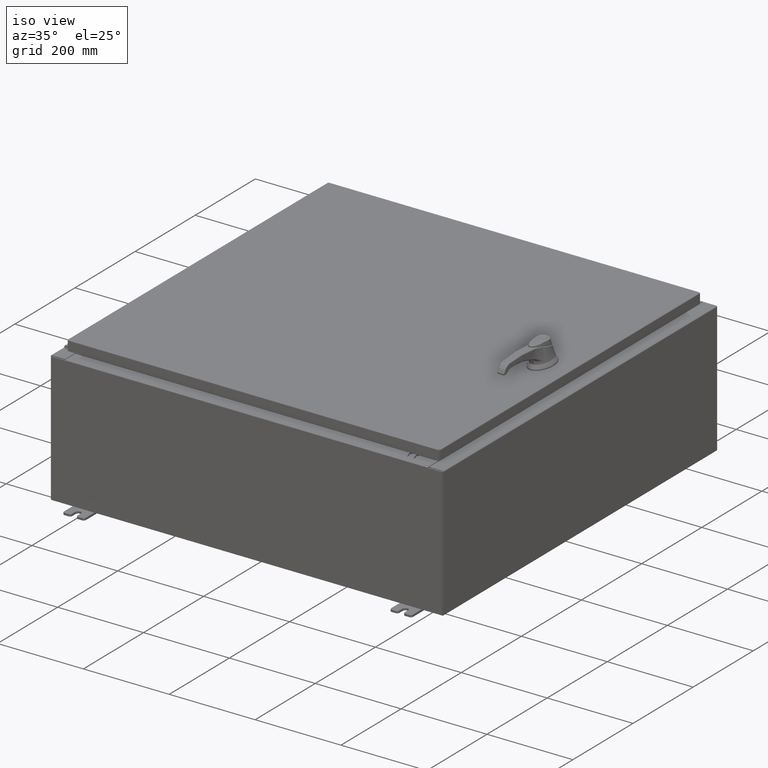
[diagram: clean part render]
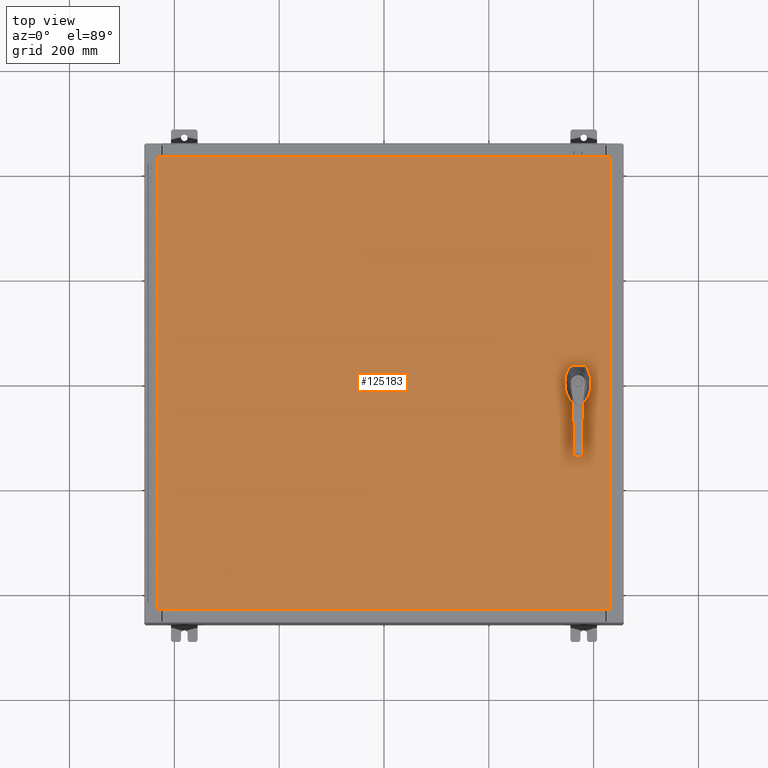
[diagram: tour spotlight — one face highlighted and labeled with its STEP entity id]
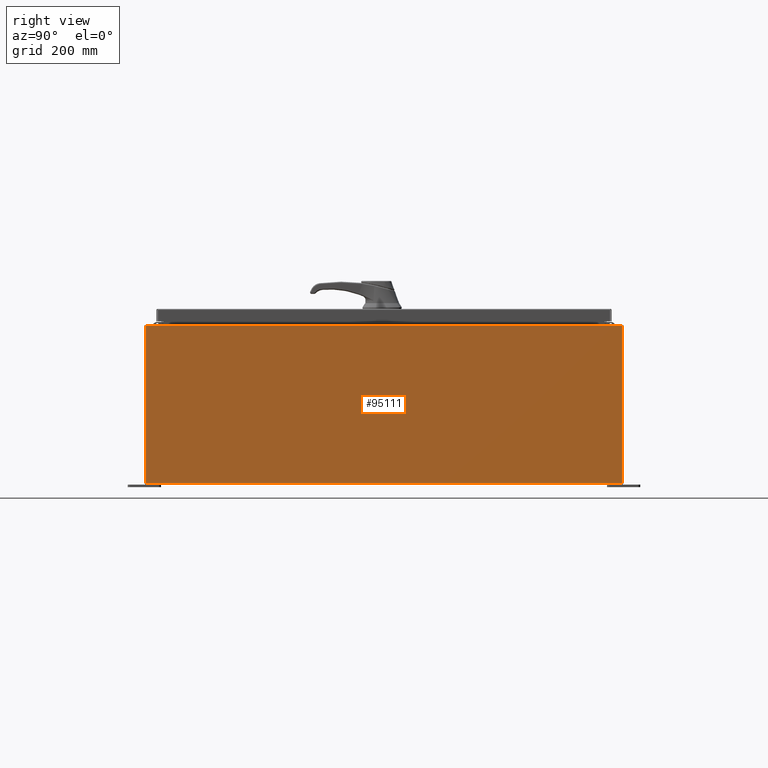
[diagram: tour spotlight — one face highlighted and labeled with its STEP entity id]
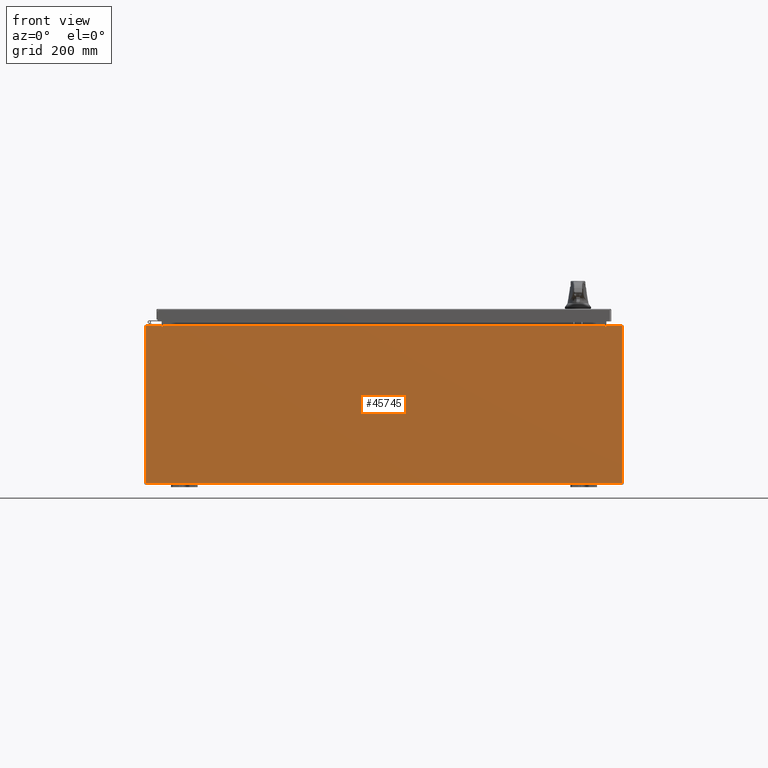
[diagram: tour spotlight — one face highlighted and labeled with its STEP entity id]
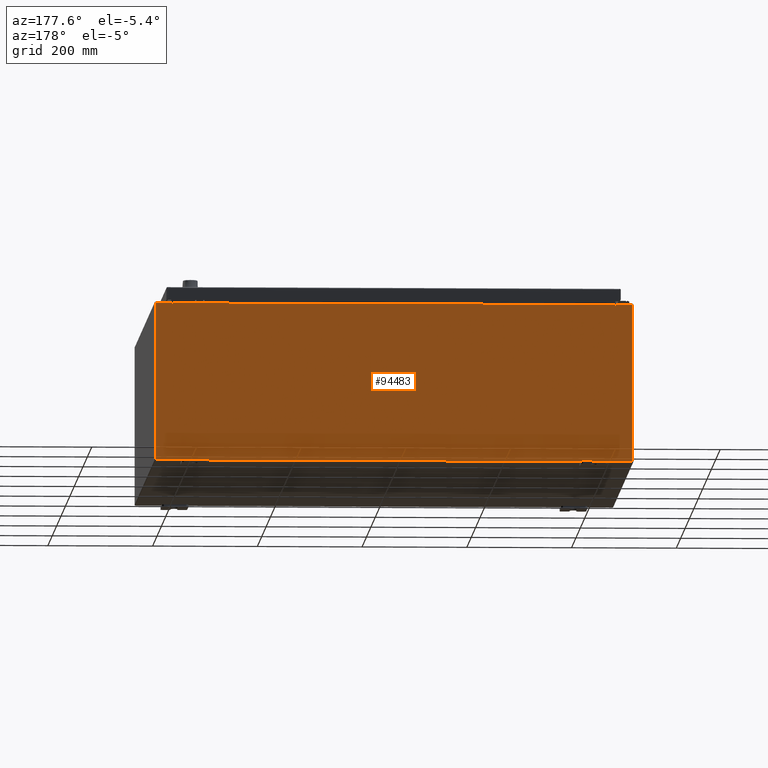
[diagram: tour spotlight — one face highlighted and labeled with its STEP entity id]
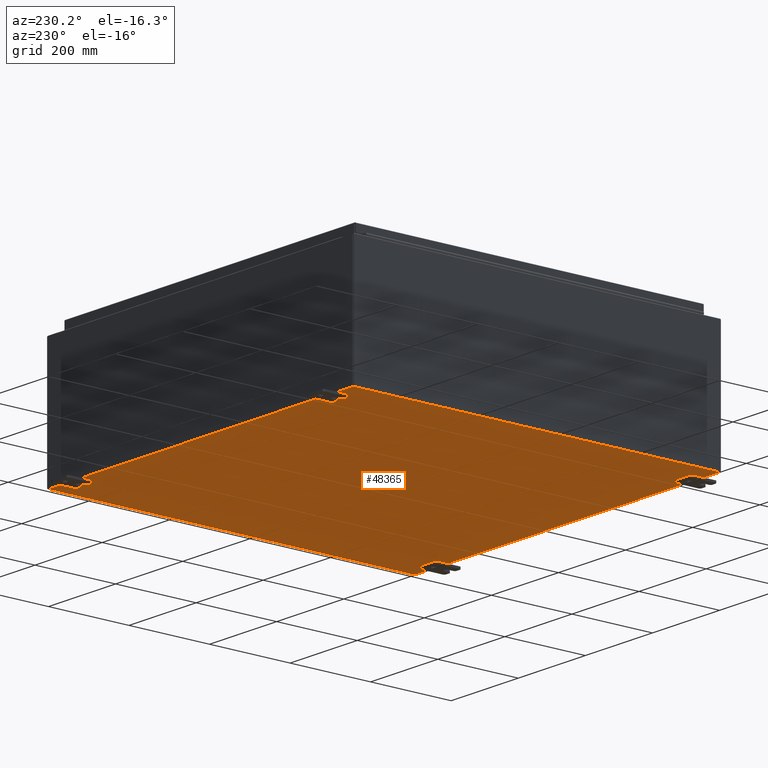
[diagram: tour spotlight — one face highlighted and labeled with its STEP entity id]
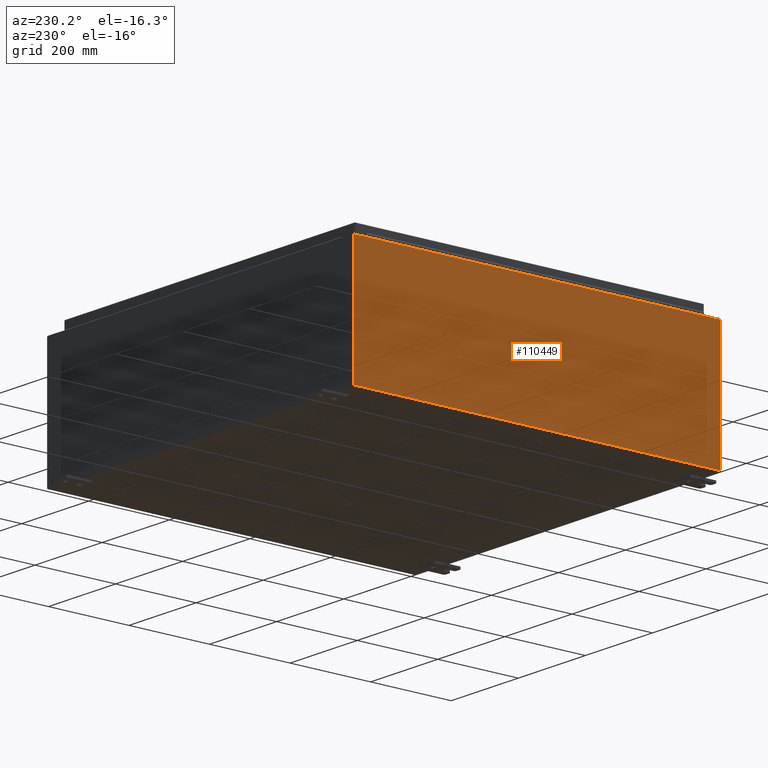
[diagram: tour spotlight — one face highlighted and labeled with its STEP entity id]
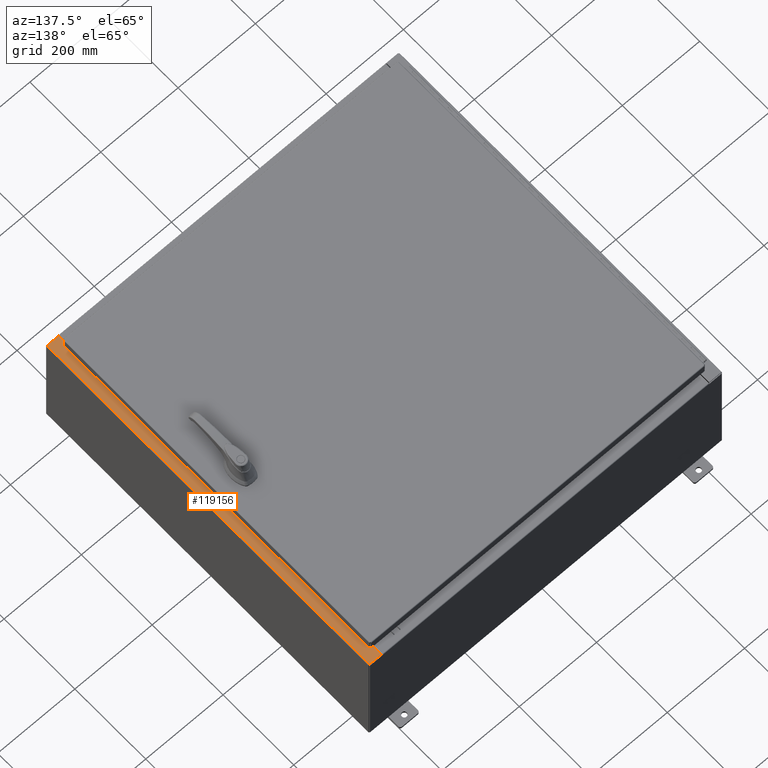
[diagram: tour spotlight — one face highlighted and labeled with its STEP entity id]
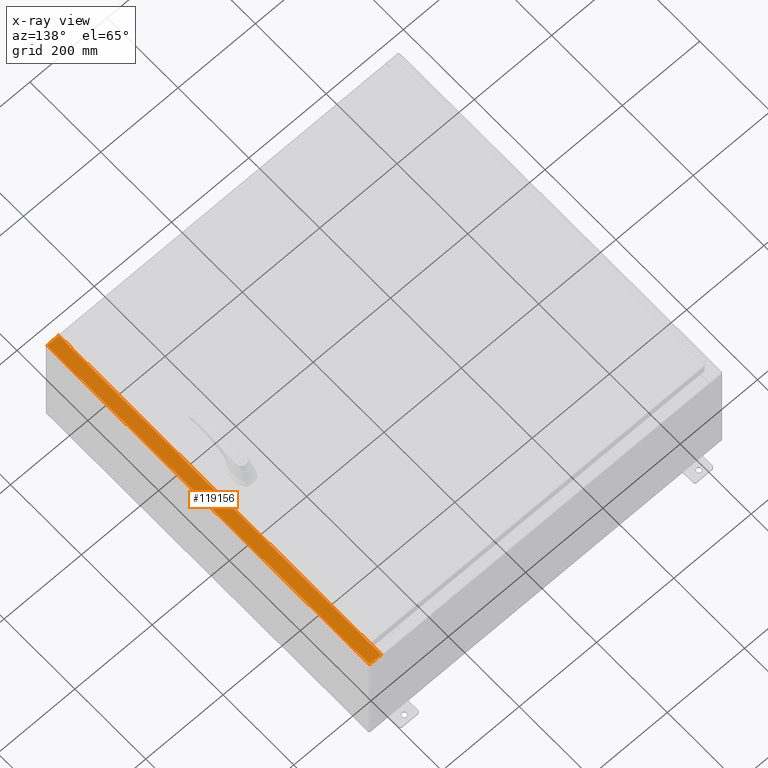
[diagram: x-ray of the same camera — body ghosted, this tour face saturated]
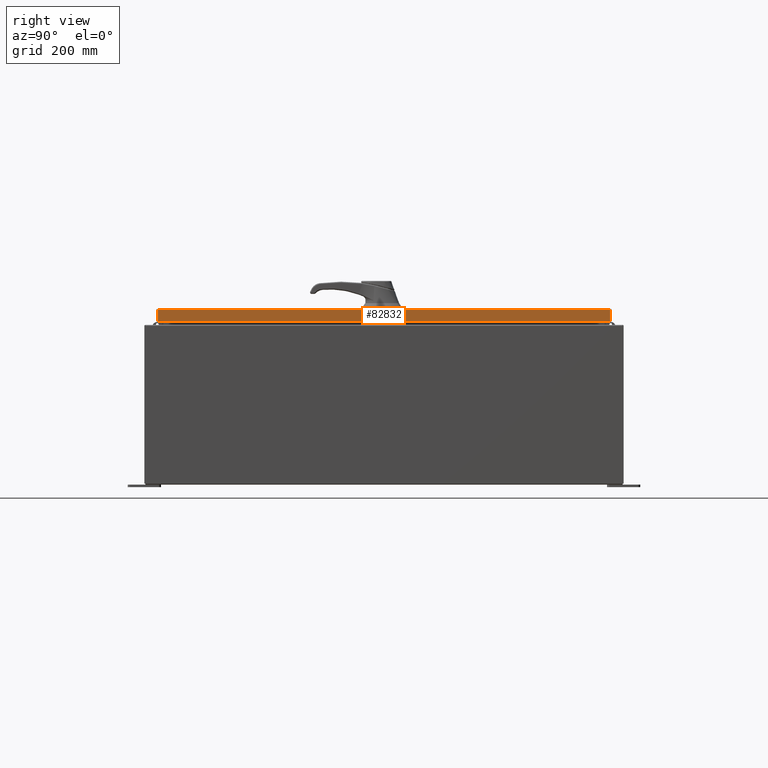
[diagram: tour spotlight — one face highlighted and labeled with its STEP entity id]
A machine part: a face-by-face anatomy tour. The part has 3022 B-rep faces; the first image is the clean iso view, then the 8 largest visible faces are spotlighted one at a time (largest first), each with its STEP entity span.

Face 1 — top view, entity #125183. In plain terms, the highlighted planar face has unit normal (0, 0, -1).
Definition (entity closure, byte-faithful):
#247 = AXIS2_PLACEMENT_3D ( 'NONE', #18612, #86260, #28329 ) ;
#1154 = CARTESIAN_POINT ( 'NONE',  ( -16.99029999999999800, -17.00630000000000000, -2.048885995248197400E-016 ) ) ;
#1490 = CIRCLE ( 'NONE', #102131, 0.4499999999999168000 ) ;
#2317 = CARTESIAN_POINT ( 'NONE',  ( 14.98099999999992700, 8.175868191945441800E-014, 0.0000000000000000000 ) ) ;
#3811 = DIRECTION ( 'NONE',  ( -0.0000000000000000000, 0.0000000000000000000, 1.000000000000000000 ) ) ;
#4805 = DIRECTION ( 'NONE',  ( -1.000000000000000000, 0.0000000000000000000, 0.0000000000000000000 ) ) ;
#5224 = CARTESIAN_POINT ( 'NONE',  ( 0.0000000000000000000, 0.4029999999999252000, 0.0000000000000000000 ) ) ;
#6013 = ORIENTED_EDGE ( 'NONE', *, *, #79825, .F. ) ;
#6403 = ORIENTED_EDGE ( 'NONE', *, *, #47116, .T. ) ;
#7168 = VECTOR ( 'NONE', #69169, 39.37007874015748100 ) ;
#8700 = ORIENTED_EDGE ( 'NONE', *, *, #18723, .F. ) ;
#9146 = CARTESIAN_POINT ( 'NONE',  ( 0.0000000000000000000, -0.4029999999999252000, 0.0000000000000000000 ) ) ;
#9535 = EDGE_CURVE ( 'NONE', #100340, #90543, #97739, .T. ) ;
#10936 = FACE_OUTER_BOUND ( 'NONE', #96216, .T. ) ;
#12810 = VERTEX_POINT ( 'NONE', #113449 ) ;
#15347 = EDGE_CURVE ( 'NONE', #25517, #33815, #97696, .T. ) ;
#16126 = ORIENTED_EDGE ( 'NONE', *, *, #19633, .F. ) ;
#18612 = CARTESIAN_POINT ( 'NONE',  ( 14.57799999999999900, 0.0000000000000000000, 0.0000000000000000000 ) ) ;
#18723 = EDGE_CURVE ( 'NONE', #104392, #21103, #53394, .T. ) ;
#18836 = DIRECTION ( 'NONE',  ( 1.000000000000000000, 0.0000000000000000000, 0.0000000000000000000 ) ) ;
#19083 = CARTESIAN_POINT ( 'NONE',  ( 16.99029999999999800, 17.00630000000000700, 8.878505979408856000E-016 ) ) ;
#19557 = PLANE ( 'NONE',  #72070 ) ;
#19633 = EDGE_CURVE ( 'NONE', #61672, #108957, #69861, .T. ) ;
#20175 = CARTESIAN_POINT ( 'NONE',  ( 14.57799999999999900, -1.338000000000000100, 0.0000000000000000000 ) ) ;
#21103 = VERTEX_POINT ( 'NONE', #112830 ) ;
#21870 = EDGE_CURVE ( 'NONE', #61672, #79755, #92408, .T. ) ;
#22813 = ORIENTED_EDGE ( 'NONE', *, *, #21870, .T. ) ;
#24285 = AXIS2_PLACEMENT_3D ( 'NONE', #33034, #100659, #42780 ) ;
#24867 = EDGE_CURVE ( 'NONE', #12810, #100340, #82413, .T. ) ;
#25517 = VERTEX_POINT ( 'NONE', #75489 ) ;
#28321 = DIRECTION ( 'NONE',  ( 0.0000000000000000000, 1.000000000000000000, 0.0000000000000000000 ) ) ;
#28329 = DIRECTION ( 'NONE',  ( 1.000000000000000000, 0.0000000000000000000, 0.0000000000000000000 ) ) ;
#29899 = DIRECTION ( 'NONE',  ( 1.000000000000000000, 0.0000000000000000000, 0.0000000000000000000 ) ) ;
#29961 = EDGE_CURVE ( 'NONE', #99778, #118231, #1490, .T. ) ;
#31470 = DIRECTION ( 'NONE',  ( 5.457491617345625800E-015, -1.000000000000000000, 0.0000000000000000000 ) ) ;
#31598 = AXIS2_PLACEMENT_3D ( 'NONE', #106842, #48927, #116537 ) ;
#33034 = CARTESIAN_POINT ( 'NONE',  ( 14.57799999999999900, 0.0000000000000000000, 0.0000000000000000000 ) ) ;
#33815 = VERTEX_POINT ( 'NONE', #78682 ) ;
#34227 = CARTESIAN_POINT ( 'NONE',  ( 14.37777262924369000, 0.4029999999999252000, 0.0000000000000000000 ) ) ;
#34671 = ORIENTED_EDGE ( 'NONE', *, *, #9535, .T. ) ;
#36681 = FACE_BOUND ( 'NONE', #67352, .T. ) ;
#37458 = CARTESIAN_POINT ( 'NONE',  ( 14.17500000000007400, 0.0000000000000000000, 0.0000000000000000000 ) ) ;
#37860 = CARTESIAN_POINT ( 'NONE',  ( 14.98099999999992900, -0.2002273707563079800, 0.0000000000000000000 ) ) ;
#39042 = CARTESIAN_POINT ( 'NONE',  ( 0.0000000000000000000, 0.0000000000000000000, 0.0000000000000000000 ) ) ;
#40576 = ORIENTED_EDGE ( 'NONE', *, *, #81793, .F. ) ;
#42014 = VECTOR ( 'NONE', #115924, 39.37007874015748100 ) ;
#42780 = DIRECTION ( 'NONE',  ( 1.000000000000000000, 0.0000000000000000000, 0.0000000000000000000 ) ) ;
#44087 = VECTOR ( 'NONE', #28321, 39.37007874015748100 ) ;
#46392 = ORIENTED_EDGE ( 'NONE', *, *, #82456, .F. ) ;
#47116 = EDGE_CURVE ( 'NONE', #89214, #12810, #93412, .T. ) ;
#47820 = CARTESIAN_POINT ( 'NONE',  ( 16.99029999999999800, -17.00629999999999600, -2.048885995248197400E-016 ) ) ;
#48760 = DIRECTION ( 'NONE',  ( 0.0000000000000000000, 0.0000000000000000000, -1.000000000000000000 ) ) ;
#48927 = DIRECTION ( 'NONE',  ( -0.0000000000000000000, 0.0000000000000000000, 1.000000000000000000 ) ) ;
#50136 = LINE ( 'NONE', #47820, #44087 ) ;
#50973 = CIRCLE ( 'NONE', #31598, 0.1715000000000011500 ) ;
#53394 = CIRCLE ( 'NONE', #82872, 0.1715000000000011500 ) ;
#53675 = CARTESIAN_POINT ( 'NONE',  ( 14.74950000000000100, -1.338000000000000100, 0.0000000000000000000 ) ) ;
#54263 = CARTESIAN_POINT ( 'NONE',  ( 14.57799999999999900, 0.0000000000000000000, 0.0000000000000000000 ) ) ;
#54295 = VECTOR ( 'NONE', #18836, 39.37007874015748100 ) ;
#55689 = ORIENTED_EDGE ( 'NONE', *, *, #112339, .F. ) ;
#55799 = DIRECTION ( 'NONE',  ( 0.0000000000000000000, -1.000000000000000000, 0.0000000000000000000 ) ) ;
#57225 = CARTESIAN_POINT ( 'NONE',  ( 14.77822737075630900, -0.4029999999999252000, 0.0000000000000000000 ) ) ;
#57317 = EDGE_LOOP ( 'NONE', ( #22813, #55689, #75155, #107827, #6013, #102780, #46392, #16126 ) ) ;
#58569 = LINE ( 'NONE', #37458, #7168 ) ;
#59267 = CARTESIAN_POINT ( 'NONE',  ( 14.17500000000007400, 0.2002273707563079800, 0.0000000000000000000 ) ) ;
#61672 = VERTEX_POINT ( 'NONE', #94278 ) ;
#61749 = CARTESIAN_POINT ( 'NONE',  ( 14.57799999999999900, 0.0000000000000000000, 0.0000000000000000000 ) ) ;
#62514 = EDGE_CURVE ( 'NONE', #33815, #76995, #83022, .T. ) ;
#63961 = DIRECTION ( 'NONE',  ( 1.000000000000000000, 0.0000000000000000000, 0.0000000000000000000 ) ) ;
#64669 = LINE ( 'NONE', #5224, #113077 ) ;
#66697 = VECTOR ( 'NONE', #31470, 39.37007874015748100 ) ;
#66946 = CARTESIAN_POINT ( 'NONE',  ( -16.99029999999999800, -17.00630000000000000, -2.048885995248197400E-016 ) ) ;
#67352 = EDGE_LOOP ( 'NONE', ( #8700, #40576 ) ) ;
#68810 = DIRECTION ( 'NONE',  ( 1.000000000000000000, -0.0000000000000000000, -0.0000000000000000000 ) ) ;
#69169 = DIRECTION ( 'NONE',  ( 0.0000000000000000000, -1.000000000000000000, 0.0000000000000000000 ) ) ;
#69861 = CIRCLE ( 'NONE', #247, 0.4499999999999168000 ) ;
#70563 = CARTESIAN_POINT ( 'NONE',  ( 16.99029999999999800, 17.00630000000000700, 8.878505979408856000E-016 ) ) ;
#71491 = DIRECTION ( 'NONE',  ( 1.000000000000000000, 0.0000000000000000000, 0.0000000000000000000 ) ) ;
#72070 = AXIS2_PLACEMENT_3D ( 'NONE', #39042, #48760, #116383 ) ;
#75155 = ORIENTED_EDGE ( 'NONE', *, *, #62514, .F. ) ;
#75489 = CARTESIAN_POINT ( 'NONE',  ( 14.17500000000007400, -0.2002273707563079800, 0.0000000000000000000 ) ) ;
#76074 = AXIS2_PLACEMENT_3D ( 'NONE', #54263, #121855, #63961 ) ;
#76995 = VERTEX_POINT ( 'NONE', #57225 ) ;
#78682 = CARTESIAN_POINT ( 'NONE',  ( 14.37777262924369000, -0.4029999999999252000, 0.0000000000000000000 ) ) ;
#79362 = VECTOR ( 'NONE', #55799, 39.37007874015748100 ) ;
#79755 = VERTEX_POINT ( 'NONE', #37860 ) ;
#79825 = EDGE_CURVE ( 'NONE', #118231, #25517, #58569, .T. ) ;
#81793 = EDGE_CURVE ( 'NONE', #21103, #104392, #50973, .T. ) ;
#82413 = LINE ( 'NONE', #123424, #79362 ) ;
#82456 = EDGE_CURVE ( 'NONE', #108957, #99778, #64669, .T. ) ;
#82872 = AXIS2_PLACEMENT_3D ( 'NONE', #20175, #87801, #29899 ) ;
#83022 = LINE ( 'NONE', #9146, #54295 ) ;
#85040 = FACE_BOUND ( 'NONE', #57317, .T. ) ;
#86260 = DIRECTION ( 'NONE',  ( -0.0000000000000000000, 0.0000000000000000000, 1.000000000000000000 ) ) ;
#87801 = DIRECTION ( 'NONE',  ( -0.0000000000000000000, 0.0000000000000000000, 1.000000000000000000 ) ) ;
#89214 = VERTEX_POINT ( 'NONE', #70563 ) ;
#90543 = VERTEX_POINT ( 'NONE', #103818 ) ;
#92408 = LINE ( 'NONE', #2317, #66697 ) ;
#93262 = ORIENTED_EDGE ( 'NONE', *, *, #116387, .T. ) ;
#93412 = LINE ( 'NONE', #19083, #42014 ) ;
#94278 = CARTESIAN_POINT ( 'NONE',  ( 14.98099999999992700, 0.2002273707563075900, 0.0000000000000000000 ) ) ;
#96216 = EDGE_LOOP ( 'NONE', ( #34671, #93262, #6403, #114845 ) ) ;
#97696 = CIRCLE ( 'NONE', #24285, 0.4499999999999168000 ) ;
#97739 = LINE ( 'NONE', #1154, #120440 ) ;
#99778 = VERTEX_POINT ( 'NONE', #34227 ) ;
#100340 = VERTEX_POINT ( 'NONE', #66946 ) ;
#100659 = DIRECTION ( 'NONE',  ( -0.0000000000000000000, 0.0000000000000000000, 1.000000000000000000 ) ) ;
#102131 = AXIS2_PLACEMENT_3D ( 'NONE', #61749, #3811, #71491 ) ;
#102780 = ORIENTED_EDGE ( 'NONE', *, *, #29961, .F. ) ;
#103818 = CARTESIAN_POINT ( 'NONE',  ( 16.99029999999999800, -17.00629999999999600, -2.048885995248197400E-016 ) ) ;
#104392 = VERTEX_POINT ( 'NONE', #53675 ) ;
#104924 = CIRCLE ( 'NONE', #76074, 0.4499999999999168000 ) ;
#106842 = CARTESIAN_POINT ( 'NONE',  ( 14.57799999999999900, -1.338000000000000100, 0.0000000000000000000 ) ) ;
#107827 = ORIENTED_EDGE ( 'NONE', *, *, #15347, .F. ) ;
#108957 = VERTEX_POINT ( 'NONE', #125056 ) ;
#112339 = EDGE_CURVE ( 'NONE', #76995, #79755, #104924, .T. ) ;
#112830 = CARTESIAN_POINT ( 'NONE',  ( 14.40649999999999800, -1.338000000000000100, 0.0000000000000000000 ) ) ;
#113077 = VECTOR ( 'NONE', #4805, 39.37007874015748100 ) ;
#113449 = CARTESIAN_POINT ( 'NONE',  ( -16.99029999999998400, 17.00630000000000300, -2.048885995248197400E-016 ) ) ;
#114845 = ORIENTED_EDGE ( 'NONE', *, *, #24867, .T. ) ;
#115924 = DIRECTION ( 'NONE',  ( -1.000000000000000000, -0.0000000000000000000, -0.0000000000000000000 ) ) ;
#116383 = DIRECTION ( 'NONE',  ( -1.000000000000000000, 0.0000000000000000000, -0.0000000000000000000 ) ) ;
#116387 = EDGE_CURVE ( 'NONE', #90543, #89214, #50136, .T. ) ;
#116537 = DIRECTION ( 'NONE',  ( 1.000000000000000000, 0.0000000000000000000, 0.0000000000000000000 ) ) ;
#118231 = VERTEX_POINT ( 'NONE', #59267 ) ;
#120440 = VECTOR ( 'NONE', #68810, 39.37007874015748100 ) ;
#121855 = DIRECTION ( 'NONE',  ( -0.0000000000000000000, 0.0000000000000000000, 1.000000000000000000 ) ) ;
#123424 = CARTESIAN_POINT ( 'NONE',  ( -16.99029999999998400, 17.00630000000000300, -2.048885995248197400E-016 ) ) ;
#125056 = CARTESIAN_POINT ( 'NONE',  ( 14.77822737075630900, 0.4029999999999252000, 0.0000000000000000000 ) ) ;
#125183 = ADVANCED_FACE ( 'NONE', ( #36681, #10936, #85040 ), #19557, .F. ) ;

Face 2 — right view, entity #95111. In plain terms, the highlighted planar face has unit normal (-1, 0, 0).
Definition (entity closure, byte-faithful):
#608 = EDGE_CURVE ( 'NONE', #79963, #64105, #79449, .T. ) ;
#8300 = VECTOR ( 'NONE', #34456, 39.37007874015748100 ) ;
#9409 = VERTEX_POINT ( 'NONE', #105599 ) ;
#9739 = LINE ( 'NONE', #80046, #41555 ) ;
#13029 = EDGE_LOOP ( 'NONE', ( #102303, #97723, #32792, #23794 ) ) ;
#13129 = CARTESIAN_POINT ( 'NONE',  ( 18.00000000000000000, 0.0000000000000000000, -6.293710784286997500E-014 ) ) ;
#15602 = CARTESIAN_POINT ( 'NONE',  ( 18.00000000000000000, 17.92530000000000000, -5.965204533939718800E-014 ) ) ;
#17882 = VECTOR ( 'NONE', #73524, 39.37007874015748100 ) ;
#22092 = DIRECTION ( 'NONE',  ( 2.122662239958547800E-031, -1.000000000000000000, 6.096072018129156600E-017 ) ) ;
#23794 = ORIENTED_EDGE ( 'NONE', *, *, #99812, .T. ) ;
#32123 = DIRECTION ( 'NONE',  ( -1.000000000000000000, 0.0000000000000000000, 3.482016343714355100E-015 ) ) ;
#32792 = ORIENTED_EDGE ( 'NONE', *, *, #50721, .F. ) ;
#34456 = DIRECTION ( 'NONE',  ( -0.0000000000000000000, -1.000000000000000000, -0.0000000000000000000 ) ) ;
#34625 = CARTESIAN_POINT ( 'NONE',  ( 18.00000000000004300, -17.92530000000000000, 11.83760000000000200 ) ) ;
#41555 = VECTOR ( 'NONE', #22092, 39.37007874015748100 ) ;
#47132 = FACE_OUTER_BOUND ( 'NONE', #13029, .T. ) ;
#50721 = EDGE_CURVE ( 'NONE', #9409, #64105, #9739, .T. ) ;
#53765 = VECTOR ( 'NONE', #60504, 39.37007874015748100 ) ;
#56691 = LINE ( 'NONE', #92302, #8300 ) ;
#59701 = VERTEX_POINT ( 'NONE', #87066 ) ;
#60504 = DIRECTION ( 'NONE',  ( -3.482016343714355500E-015, 0.0000000000000000000, -1.000000000000000000 ) ) ;
#64105 = VERTEX_POINT ( 'NONE', #92120 ) ;
#68143 = EDGE_CURVE ( 'NONE', #59701, #79963, #56691, .T. ) ;
#73524 = DIRECTION ( 'NONE',  ( 3.482016343714355500E-015, -1.832640180902292400E-016, 1.000000000000000000 ) ) ;
#79449 = LINE ( 'NONE', #88383, #53765 ) ;
#79963 = VERTEX_POINT ( 'NONE', #34625 ) ;
#80046 = CARTESIAN_POINT ( 'NONE',  ( 18.00000000000000000, -17.92530000000000000, 0.01299999999999984700 ) ) ;
#87066 = CARTESIAN_POINT ( 'NONE',  ( 18.00000000000004300, 17.92530000000000000, 11.83760000000000200 ) ) ;
#88383 = CARTESIAN_POINT ( 'NONE',  ( 18.00000000000000000, -17.92530000000000000, -6.293710784286997500E-014 ) ) ;
#90441 = PLANE ( 'NONE',  #92352 ) ;
#92120 = CARTESIAN_POINT ( 'NONE',  ( 18.00000000000000000, -17.92530000000000000, 0.01300000000000022700 ) ) ;
#92302 = CARTESIAN_POINT ( 'NONE',  ( 18.00000000000004300, 17.92530000000000000, 11.83760000000000200 ) ) ;
#92352 = AXIS2_PLACEMENT_3D ( 'NONE', #13129, #32123, #100173 ) ;
#95111 = ADVANCED_FACE ( 'NONE', ( #47132 ), #90441, .F. ) ;
#97723 = ORIENTED_EDGE ( 'NONE', *, *, #608, .T. ) ;
#99812 = EDGE_CURVE ( 'NONE', #9409, #59701, #117738, .T. ) ;
#100173 = DIRECTION ( 'NONE',  ( 3.482016343714355100E-015, 0.0000000000000000000, 1.000000000000000000 ) ) ;
#102303 = ORIENTED_EDGE ( 'NONE', *, *, #68143, .T. ) ;
#105599 = CARTESIAN_POINT ( 'NONE',  ( 18.00000000000000000, 17.92530000000000000, 0.01299999999999766100 ) ) ;
#117738 = LINE ( 'NONE', #15602, #17882 ) ;

Face 3 — front view, entity #45745. In plain terms, the highlighted planar face has unit normal (-0, 1, -0).
Definition (entity closure, byte-faithful):
#1341 = DIRECTION ( 'NONE',  ( -8.681145560799821800E-014, 0.0000000000000000000, -1.000000000000000000 ) ) ;
#3078 = CARTESIAN_POINT ( 'NONE',  ( -16.63720000000000000, 3.756290991288361700E-016, 5.912299999999999200 ) ) ;
#4880 = EDGE_CURVE ( 'NONE', #77182, #24878, #121171, .T. ) ;
#5556 = DIRECTION ( 'NONE',  ( 0.0000000000000000000, 0.0000000000000000000, -1.000000000000000000 ) ) ;
#6413 = CARTESIAN_POINT ( 'NONE',  ( -16.67455000000000000, 0.0000000000000000000, 5.925299999999999100 ) ) ;
#9327 = CARTESIAN_POINT ( 'NONE',  ( 16.67455000000000400, 0.0000000000000000000, 5.874949999999999200 ) ) ;
#9538 = DIRECTION ( 'NONE',  ( 0.0000000000000000000, -0.0000000000000000000, -1.000000000000000000 ) ) ;
#9831 = ORIENTED_EDGE ( 'NONE', *, *, #64724, .F. ) ;
#13480 = ORIENTED_EDGE ( 'NONE', *, *, #58668, .F. ) ;
#13783 = ORIENTED_EDGE ( 'NONE', *, *, #56678, .T. ) ;
#14004 = LINE ( 'NONE', #103746, #36676 ) ;
#14357 = VERTEX_POINT ( 'NONE', #51246 ) ;
#14592 = CARTESIAN_POINT ( 'NONE',  ( -16.65587499999999800, 0.0000000000000000000, 5.874949999999999200 ) ) ;
#18071 = VECTOR ( 'NONE', #82864, 39.37007874015748100 ) ;
#18781 = LINE ( 'NONE', #86994, #67210 ) ;
#19436 = VECTOR ( 'NONE', #83901, 39.37007874015748100 ) ;
#19927 = ORIENTED_EDGE ( 'NONE', *, *, #4880, .F. ) ;
#21789 = DIRECTION ( 'NONE',  ( -1.000000000000000000, -0.0000000000000000000, -0.0000000000000000000 ) ) ;
#23960 = EDGE_CURVE ( 'NONE', #24878, #80195, #91570, .T. ) ;
#24243 = DIRECTION ( 'NONE',  ( 0.0000000000000000000, 0.0000000000000000000, -1.000000000000000000 ) ) ;
#24856 = CARTESIAN_POINT ( 'NONE',  ( 16.63720000000000400, 0.0000000000000000000, 0.0000000000000000000 ) ) ;
#24878 = VERTEX_POINT ( 'NONE', #75221 ) ;
#25028 = EDGE_CURVE ( 'NONE', #45680, #88840, #18781, .T. ) ;
#26368 = CARTESIAN_POINT ( 'NONE',  ( -16.63720000000000000, 3.756290991288361700E-016, 5.912299999999999200 ) ) ;
#27935 = VECTOR ( 'NONE', #74446, 39.37007874015748100 ) ;
#28528 = DIRECTION ( 'NONE',  ( 0.0000000000000000000, -1.000000000000000000, 0.0000000000000000000 ) ) ;
#30143 = EDGE_CURVE ( 'NONE', #14357, #70246, #117928, .T. ) ;
#30613 = CARTESIAN_POINT ( 'NONE',  ( -17.92529999999999600, 0.0000000000000000000, 5.925299999999999100 ) ) ;
#31003 = LINE ( 'NONE', #64716, #27935 ) ;
#32713 = VERTEX_POINT ( 'NONE', #42367 ) ;
#34994 = FACE_OUTER_BOUND ( 'NONE', #63926, .T. ) ;
#36676 = VECTOR ( 'NONE', #93976, 39.37007874015748100 ) ;
#37252 = DIRECTION ( 'NONE',  ( 0.0000000000000000000, 0.0000000000000000000, -1.000000000000000000 ) ) ;
#38870 = VECTOR ( 'NONE', #1341, 39.37007874015748100 ) ;
#39917 = LINE ( 'NONE', #30613, #56512 ) ;
#41538 = EDGE_CURVE ( 'NONE', #79750, #87838, #39917, .T. ) ;
#42367 = CARTESIAN_POINT ( 'NONE',  ( 17.92530000000000400, 0.0000000000000000000, -5.925300000000000000 ) ) ;
#43839 = ORIENTED_EDGE ( 'NONE', *, *, #25028, .T. ) ;
#45680 = VERTEX_POINT ( 'NONE', #66206 ) ;
#45745 = ADVANCED_FACE ( 'NONE', ( #34994 ), #67438, .F. ) ;
#47585 = CARTESIAN_POINT ( 'NONE',  ( 16.67455000000000700, 0.0000000000000000000, 5.925300000000000000 ) ) ;
#48585 = CIRCLE ( 'NONE', #102689, 0.01867499999999949400 ) ;
#49554 = CARTESIAN_POINT ( 'NONE',  ( 16.67454999999949500, -0.0000000000000000000, -1.447541957108302900E-012 ) ) ;
#51246 = CARTESIAN_POINT ( 'NONE',  ( 16.63720000000000400, 0.0000000000000000000, 5.874949999999999200 ) ) ;
#52525 = ORIENTED_EDGE ( 'NONE', *, *, #30143, .F. ) ;
#54111 = EDGE_CURVE ( 'NONE', #59639, #14357, #48585, .T. ) ;
#56257 = CARTESIAN_POINT ( 'NONE',  ( -16.63720000000000000, -0.0000000000000000000, 0.0000000000000000000 ) ) ;
#56512 = VECTOR ( 'NONE', #79245, 39.37007874015748100 ) ;
#56678 = EDGE_CURVE ( 'NONE', #77182, #70246, #102690, .T. ) ;
#58628 = CARTESIAN_POINT ( 'NONE',  ( -17.92529999999999600, 0.0000000000000000000, 5.925299999999999100 ) ) ;
#58668 = EDGE_CURVE ( 'NONE', #80195, #88840, #14004, .T. ) ;
#59639 = VERTEX_POINT ( 'NONE', #9327 ) ;
#60584 = EDGE_CURVE ( 'NONE', #124009, #45680, #98354, .T. ) ;
#63306 = ORIENTED_EDGE ( 'NONE', *, *, #71427, .T. ) ;
#63478 = DIRECTION ( 'NONE',  ( -0.0000000000000000000, 1.000000000000000000, -0.0000000000000000000 ) ) ;
#63926 = EDGE_LOOP ( 'NONE', ( #13480, #105567, #19927, #13783, #52525, #101228, #9831, #96336, #63306, #110653, #123671, #43839 ) ) ;
#64716 = CARTESIAN_POINT ( 'NONE',  ( 17.92530000000000400, 0.0000000000000000000, 5.925300000000000000 ) ) ;
#64724 = EDGE_CURVE ( 'NONE', #79750, #59639, #90269, .T. ) ;
#66206 = CARTESIAN_POINT ( 'NONE',  ( -17.92529999999999600, 0.0000000000000000000, 5.925299999999999100 ) ) ;
#67210 = VECTOR ( 'NONE', #96705, 39.37007874015748100 ) ;
#67438 = PLANE ( 'NONE',  #110272 ) ;
#69654 = VECTOR ( 'NONE', #106848, 39.37007874015748100 ) ;
#69752 = VECTOR ( 'NONE', #37252, 39.37007874015748100 ) ;
#70031 = CARTESIAN_POINT ( 'NONE',  ( -17.92529999999999600, 0.0000000000000000000, -5.925300000000000000 ) ) ;
#70246 = VERTEX_POINT ( 'NONE', #85529 ) ;
#71427 = EDGE_CURVE ( 'NONE', #87838, #32713, #31003, .T. ) ;
#74446 = DIRECTION ( 'NONE',  ( 0.0000000000000000000, 0.0000000000000000000, -1.000000000000000000 ) ) ;
#75221 = CARTESIAN_POINT ( 'NONE',  ( -16.63720000000000000, -0.0000000000000000000, 5.874949999999999200 ) ) ;
#77182 = VERTEX_POINT ( 'NONE', #3078 ) ;
#79245 = DIRECTION ( 'NONE',  ( 1.000000000000000000, 0.0000000000000000000, 3.048036009064577000E-017 ) ) ;
#79750 = VERTEX_POINT ( 'NONE', #47585 ) ;
#80195 = VERTEX_POINT ( 'NONE', #89245 ) ;
#82238 = DIRECTION ( 'NONE',  ( -0.0000000000000000000, 1.000000000000000000, -0.0000000000000000000 ) ) ;
#82864 = DIRECTION ( 'NONE',  ( 0.0000000000000000000, 0.0000000000000000000, 1.000000000000000000 ) ) ;
#83901 = DIRECTION ( 'NONE',  ( 1.000000000000000000, 0.0000000000000000000, 0.0000000000000000000 ) ) ;
#85529 = CARTESIAN_POINT ( 'NONE',  ( 16.63720000000000400, 0.0000000000000000000, 5.912299999999999200 ) ) ;
#86994 = CARTESIAN_POINT ( 'NONE',  ( -17.92529999999999600, 0.0000000000000000000, 5.925299999999999100 ) ) ;
#87838 = VERTEX_POINT ( 'NONE', #93151 ) ;
#88840 = VERTEX_POINT ( 'NONE', #6413 ) ;
#89245 = CARTESIAN_POINT ( 'NONE',  ( -16.67455000000000000, 0.0000000000000000000, 5.874949999999999200 ) ) ;
#90269 = LINE ( 'NONE', #49554, #38870 ) ;
#91294 = LINE ( 'NONE', #70031, #117035 ) ;
#91570 = CIRCLE ( 'NONE', #101729, 0.01867499999999949400 ) ;
#93151 = CARTESIAN_POINT ( 'NONE',  ( 17.92530000000000400, 0.0000000000000000000, 5.925300000000000000 ) ) ;
#93976 = DIRECTION ( 'NONE',  ( 0.0000000000000000000, 0.0000000000000000000, 1.000000000000000000 ) ) ;
#96336 = ORIENTED_EDGE ( 'NONE', *, *, #41538, .T. ) ;
#96705 = DIRECTION ( 'NONE',  ( 1.000000000000000000, 0.0000000000000000000, 3.048036009064577000E-017 ) ) ;
#98354 = LINE ( 'NONE', #58628, #69654 ) ;
#101228 = ORIENTED_EDGE ( 'NONE', *, *, #54111, .F. ) ;
#101729 = AXIS2_PLACEMENT_3D ( 'NONE', #14592, #82238, #24243 ) ;
#102689 = AXIS2_PLACEMENT_3D ( 'NONE', #121355, #63478, #5556 ) ;
#102690 = LINE ( 'NONE', #26368, #19436 ) ;
#103746 = CARTESIAN_POINT ( 'NONE',  ( -16.67455000000000000, -0.0000000000000000000, 0.0000000000000000000 ) ) ;
#104783 = EDGE_CURVE ( 'NONE', #32713, #124009, #91294, .T. ) ;
#105567 = ORIENTED_EDGE ( 'NONE', *, *, #23960, .F. ) ;
#105926 = CARTESIAN_POINT ( 'NONE',  ( 0.0000000000000000000, 0.0000000000000000000, 0.0000000000000000000 ) ) ;
#106848 = DIRECTION ( 'NONE',  ( -0.0000000000000000000, -0.0000000000000000000, 1.000000000000000000 ) ) ;
#110272 = AXIS2_PLACEMENT_3D ( 'NONE', #105926, #28528, #9538 ) ;
#110653 = ORIENTED_EDGE ( 'NONE', *, *, #104783, .T. ) ;
#116674 = CARTESIAN_POINT ( 'NONE',  ( -17.92529999999999600, 0.0000000000000000000, -5.925300000000000000 ) ) ;
#117035 = VECTOR ( 'NONE', #21789, 39.37007874015748100 ) ;
#117928 = LINE ( 'NONE', #24856, #18071 ) ;
#121171 = LINE ( 'NONE', #56257, #69752 ) ;
#121355 = CARTESIAN_POINT ( 'NONE',  ( 16.65587500000000500, 0.0000000000000000000, 5.874949999999999200 ) ) ;
#123671 = ORIENTED_EDGE ( 'NONE', *, *, #60584, .T. ) ;
#124009 = VERTEX_POINT ( 'NONE', #116674 ) ;

Face 4 — auxiliary view, entity #94483. In plain terms, the highlighted planar face has unit normal (0, -1, 0).
Definition (entity closure, byte-faithful):
#725 = VERTEX_POINT ( 'NONE', #62474 ) ;
#1002 = LINE ( 'NONE', #91720, #23649 ) ;
#1594 = ORIENTED_EDGE ( 'NONE', *, *, #35220, .T. ) ;
#3380 = VECTOR ( 'NONE', #104228, 39.37007874015748100 ) ;
#3760 = ORIENTED_EDGE ( 'NONE', *, *, #52125, .F. ) ;
#4057 = AXIS2_PLACEMENT_3D ( 'NONE', #53434, #15352, #83005 ) ;
#5335 = VECTOR ( 'NONE', #16105, 39.37007874015748100 ) ;
#5463 = CARTESIAN_POINT ( 'NONE',  ( -17.92529999999999600, 0.0000000000000000000, 5.925299999999999100 ) ) ;
#5933 = CARTESIAN_POINT ( 'NONE',  ( 16.63720000000000400, 0.0000000000000000000, 5.912299999999999200 ) ) ;
#6256 = CARTESIAN_POINT ( 'NONE',  ( -17.92529999999999600, 0.0000000000000000000, 5.925299999999999100 ) ) ;
#9636 = DIRECTION ( 'NONE',  ( -0.0000000000000000000, 1.000000000000000000, -0.0000000000000000000 ) ) ;
#10519 = VERTEX_POINT ( 'NONE', #52575 ) ;
#11164 = ORIENTED_EDGE ( 'NONE', *, *, #72895, .T. ) ;
#11188 = EDGE_CURVE ( 'NONE', #10519, #78092, #43892, .T. ) ;
#12443 = FACE_OUTER_BOUND ( 'NONE', #79989, .T. ) ;
#13599 = LINE ( 'NONE', #80105, #61998 ) ;
#15296 = DIRECTION ( 'NONE',  ( 1.000000000000000000, 0.0000000000000000000, 3.048036009064577000E-017 ) ) ;
#15352 = DIRECTION ( 'NONE',  ( 0.0000000000000000000, -1.000000000000000000, 0.0000000000000000000 ) ) ;
#16105 = DIRECTION ( 'NONE',  ( 0.0000000000000000000, 0.0000000000000000000, 1.000000000000000000 ) ) ;
#18107 = VECTOR ( 'NONE', #120407, 39.37007874015748100 ) ;
#18561 = VECTOR ( 'NONE', #33231, 39.37007874015748100 ) ;
#19116 = EDGE_CURVE ( 'NONE', #81615, #101503, #80555, .T. ) ;
#21282 = ORIENTED_EDGE ( 'NONE', *, *, #11188, .F. ) ;
#22182 = VECTOR ( 'NONE', #92012, 39.37007874015748100 ) ;
#23589 = CARTESIAN_POINT ( 'NONE',  ( -16.63720000000000000, -0.0000000000000000000, 0.0000000000000000000 ) ) ;
#23649 = VECTOR ( 'NONE', #43569, 39.37007874015748100 ) ;
#24830 = DIRECTION ( 'NONE',  ( 1.000000000000000000, 0.0000000000000000000, 3.048036009064577000E-017 ) ) ;
#25731 = CARTESIAN_POINT ( 'NONE',  ( 16.65587500000000500, 0.0000000000000000000, 5.874949999999999200 ) ) ;
#25806 = DIRECTION ( 'NONE',  ( 0.0000000000000000000, 0.0000000000000000000, -1.000000000000000000 ) ) ;
#28048 = CARTESIAN_POINT ( 'NONE',  ( 16.63720000000000400, 0.0000000000000000000, 0.0000000000000000000 ) ) ;
#31416 = VERTEX_POINT ( 'NONE', #71654 ) ;
#33231 = DIRECTION ( 'NONE',  ( -8.681145560799821800E-014, 0.0000000000000000000, -1.000000000000000000 ) ) ;
#35220 = EDGE_CURVE ( 'NONE', #10519, #101503, #13599, .T. ) ;
#35527 = DIRECTION ( 'NONE',  ( 0.0000000000000000000, 0.0000000000000000000, -1.000000000000000000 ) ) ;
#36864 = CARTESIAN_POINT ( 'NONE',  ( -16.67455000000000000, 0.0000000000000000000, 5.874949999999999200 ) ) ;
#37093 = ORIENTED_EDGE ( 'NONE', *, *, #114370, .F. ) ;
#37718 = VECTOR ( 'NONE', #25806, 39.37007874015748100 ) ;
#41444 = LINE ( 'NONE', #5463, #89768 ) ;
#41892 = VERTEX_POINT ( 'NONE', #111768 ) ;
#42936 = VECTOR ( 'NONE', #15296, 39.37007874015748100 ) ;
#43302 = ORIENTED_EDGE ( 'NONE', *, *, #71387, .F. ) ;
#43569 = DIRECTION ( 'NONE',  ( -1.000000000000000000, -0.0000000000000000000, -0.0000000000000000000 ) ) ;
#43613 = ORIENTED_EDGE ( 'NONE', *, *, #120608, .T. ) ;
#43892 = LINE ( 'NONE', #23589, #18107 ) ;
#44064 = CARTESIAN_POINT ( 'NONE',  ( -17.92529999999999600, 0.0000000000000000000, 5.925299999999999100 ) ) ;
#49813 = VERTEX_POINT ( 'NONE', #56161 ) ;
#50903 = VERTEX_POINT ( 'NONE', #36864 ) ;
#51391 = EDGE_CURVE ( 'NONE', #120702, #725, #41444, .T. ) ;
#51431 = CARTESIAN_POINT ( 'NONE',  ( 17.92530000000000400, 0.0000000000000000000, -5.925300000000000000 ) ) ;
#52125 = EDGE_CURVE ( 'NONE', #118366, #49813, #121464, .T. ) ;
#52575 = CARTESIAN_POINT ( 'NONE',  ( -16.63720000000000000, 3.756290991288361700E-016, 5.912299999999999200 ) ) ;
#52705 = CARTESIAN_POINT ( 'NONE',  ( 16.67454999999949500, -0.0000000000000000000, -1.447541957108302900E-012 ) ) ;
#53434 = CARTESIAN_POINT ( 'NONE',  ( 0.0000000000000000000, 0.0000000000000000000, 0.0000000000000000000 ) ) ;
#56161 = CARTESIAN_POINT ( 'NONE',  ( 16.67455000000000400, 0.0000000000000000000, 5.874949999999999200 ) ) ;
#61998 = VECTOR ( 'NONE', #89777, 39.37007874015748100 ) ;
#62474 = CARTESIAN_POINT ( 'NONE',  ( -16.67455000000000000, 0.0000000000000000000, 5.925299999999999100 ) ) ;
#63563 = PLANE ( 'NONE',  #4057 ) ;
#64906 = EDGE_CURVE ( 'NONE', #72369, #41892, #1002, .T. ) ;
#67549 = CARTESIAN_POINT ( 'NONE',  ( -16.65587499999999800, 0.0000000000000000000, 5.874949999999999200 ) ) ;
#71387 = EDGE_CURVE ( 'NONE', #50903, #725, #82473, .T. ) ;
#71654 = CARTESIAN_POINT ( 'NONE',  ( 17.92530000000000400, 0.0000000000000000000, 5.925300000000000000 ) ) ;
#72369 = VERTEX_POINT ( 'NONE', #51431 ) ;
#72895 = EDGE_CURVE ( 'NONE', #118366, #31416, #117026, .T. ) ;
#77238 = ORIENTED_EDGE ( 'NONE', *, *, #77507, .T. ) ;
#77280 = DIRECTION ( 'NONE',  ( 0.0000000000000000000, 0.0000000000000000000, -1.000000000000000000 ) ) ;
#77507 = EDGE_CURVE ( 'NONE', #31416, #72369, #111869, .T. ) ;
#78092 = VERTEX_POINT ( 'NONE', #102649 ) ;
#79727 = LINE ( 'NONE', #82347, #22182 ) ;
#79989 = EDGE_LOOP ( 'NONE', ( #43302, #37093, #21282, #1594, #113107, #105076, #3760, #11164, #77238, #118948, #43613, #88500 ) ) ;
#80105 = CARTESIAN_POINT ( 'NONE',  ( -16.63720000000000000, 3.756290991288361700E-016, 5.912299999999999200 ) ) ;
#80402 = CARTESIAN_POINT ( 'NONE',  ( 16.67455000000000700, 0.0000000000000000000, 5.925300000000000000 ) ) ;
#80555 = LINE ( 'NONE', #28048, #3380 ) ;
#81615 = VERTEX_POINT ( 'NONE', #94981 ) ;
#82347 = CARTESIAN_POINT ( 'NONE',  ( -17.92529999999999600, 0.0000000000000000000, 5.925299999999999100 ) ) ;
#82473 = LINE ( 'NONE', #122213, #5335 ) ;
#83005 = DIRECTION ( 'NONE',  ( 0.0000000000000000000, -0.0000000000000000000, -1.000000000000000000 ) ) ;
#87758 = CIRCLE ( 'NONE', #116809, 0.01867499999999949400 ) ;
#88500 = ORIENTED_EDGE ( 'NONE', *, *, #51391, .T. ) ;
#89768 = VECTOR ( 'NONE', #24830, 39.37007874015748100 ) ;
#89777 = DIRECTION ( 'NONE',  ( 1.000000000000000000, 0.0000000000000000000, 0.0000000000000000000 ) ) ;
#91720 = CARTESIAN_POINT ( 'NONE',  ( -17.92529999999999600, 0.0000000000000000000, -5.925300000000000000 ) ) ;
#92012 = DIRECTION ( 'NONE',  ( -0.0000000000000000000, -0.0000000000000000000, 1.000000000000000000 ) ) ;
#93382 = DIRECTION ( 'NONE',  ( -0.0000000000000000000, 1.000000000000000000, -0.0000000000000000000 ) ) ;
#94005 = AXIS2_PLACEMENT_3D ( 'NONE', #67549, #9636, #77280 ) ;
#94483 = ADVANCED_FACE ( 'NONE', ( #12443 ), #63563, .F. ) ;
#94981 = CARTESIAN_POINT ( 'NONE',  ( 16.63720000000000400, 0.0000000000000000000, 5.874949999999999200 ) ) ;
#97914 = EDGE_CURVE ( 'NONE', #49813, #81615, #87758, .T. ) ;
#101503 = VERTEX_POINT ( 'NONE', #5933 ) ;
#102649 = CARTESIAN_POINT ( 'NONE',  ( -16.63720000000000000, -0.0000000000000000000, 5.874949999999999200 ) ) ;
#103142 = CIRCLE ( 'NONE', #94005, 0.01867499999999949400 ) ;
#104228 = DIRECTION ( 'NONE',  ( 0.0000000000000000000, 0.0000000000000000000, 1.000000000000000000 ) ) ;
#105076 = ORIENTED_EDGE ( 'NONE', *, *, #97914, .F. ) ;
#111768 = CARTESIAN_POINT ( 'NONE',  ( -17.92529999999999600, 0.0000000000000000000, -5.925300000000000000 ) ) ;
#111869 = LINE ( 'NONE', #112955, #37718 ) ;
#112955 = CARTESIAN_POINT ( 'NONE',  ( 17.92530000000000400, 0.0000000000000000000, 5.925300000000000000 ) ) ;
#113107 = ORIENTED_EDGE ( 'NONE', *, *, #19116, .F. ) ;
#114370 = EDGE_CURVE ( 'NONE', #78092, #50903, #103142, .T. ) ;
#116809 = AXIS2_PLACEMENT_3D ( 'NONE', #25731, #93382, #35527 ) ;
#117026 = LINE ( 'NONE', #44064, #42936 ) ;
#118366 = VERTEX_POINT ( 'NONE', #80402 ) ;
#118948 = ORIENTED_EDGE ( 'NONE', *, *, #64906, .T. ) ;
#120407 = DIRECTION ( 'NONE',  ( 0.0000000000000000000, 0.0000000000000000000, -1.000000000000000000 ) ) ;
#120608 = EDGE_CURVE ( 'NONE', #41892, #120702, #79727, .T. ) ;
#120702 = VERTEX_POINT ( 'NONE', #6256 ) ;
#121464 = LINE ( 'NONE', #52705, #18561 ) ;
#122213 = CARTESIAN_POINT ( 'NONE',  ( -16.67455000000000000, -0.0000000000000000000, 0.0000000000000000000 ) ) ;

Face 5 — auxiliary view, entity #48365. In plain terms, the highlighted planar face has unit normal (0, 0, -1).
Definition (entity closure, byte-faithful):
#61 = EDGE_CURVE ( 'NONE', #8213, #46690, #87042, .T. ) ;
#4055 = CARTESIAN_POINT ( 'NONE',  ( 0.0000000000000000000, 0.0000000000000000000, -0.07470000000000000300 ) ) ;
#4725 = CARTESIAN_POINT ( 'NONE',  ( -18.00000000000000000, -17.92530000000000000, -0.07470000000000000300 ) ) ;
#8213 = VERTEX_POINT ( 'NONE', #44211 ) ;
#8627 = ORIENTED_EDGE ( 'NONE', *, *, #119135, .T. ) ;
#10306 = VECTOR ( 'NONE', #89918, 39.37007874015748100 ) ;
#12894 = CARTESIAN_POINT ( 'NONE',  ( 17.91229999999999800, -17.92530000000000000, -0.07470000000000000300 ) ) ;
#14443 = DIRECTION ( 'NONE',  ( 1.000000000000000000, 0.0000000000000000000, 0.0000000000000000000 ) ) ;
#16156 = EDGE_LOOP ( 'NONE', ( #41754, #8627, #74776, #118617 ) ) ;
#18918 = VERTEX_POINT ( 'NONE', #53161 ) ;
#29330 = CARTESIAN_POINT ( 'NONE',  ( 17.91229999999999800, 17.92530000000000000, -0.07470000000000251400 ) ) ;
#35680 = VECTOR ( 'NONE', #39092, 39.37007874015748100 ) ;
#39092 = DIRECTION ( 'NONE',  ( -0.0000000000000000000, -1.000000000000000000, 8.208677865577646300E-017 ) ) ;
#39105 = VECTOR ( 'NONE', #102489, 39.37007874015748100 ) ;
#39112 = EDGE_CURVE ( 'NONE', #18918, #46690, #56866, .T. ) ;
#41754 = ORIENTED_EDGE ( 'NONE', *, *, #39112, .F. ) ;
#43365 = DIRECTION ( 'NONE',  ( 0.0000000000000000000, 0.0000000000000000000, -1.000000000000000000 ) ) ;
#44211 = CARTESIAN_POINT ( 'NONE',  ( 17.91229999999999800, 17.92530000000000000, -0.07470000000000251400 ) ) ;
#46690 = VERTEX_POINT ( 'NONE', #12894 ) ;
#48365 = ADVANCED_FACE ( 'NONE', ( #91705 ), #52284, .T. ) ;
#52284 = PLANE ( 'NONE',  #110496 ) ;
#53161 = CARTESIAN_POINT ( 'NONE',  ( -17.91229999999999800, -17.92530000000000000, -0.07469999999999994700 ) ) ;
#56866 = LINE ( 'NONE', #4725, #105276 ) ;
#62860 = EDGE_CURVE ( 'NONE', #8213, #114287, #64814, .T. ) ;
#64814 = LINE ( 'NONE', #73346, #39105 ) ;
#73346 = CARTESIAN_POINT ( 'NONE',  ( -18.00000000000000000, 17.92530000000000000, -0.07470000000000000300 ) ) ;
#74776 = ORIENTED_EDGE ( 'NONE', *, *, #62860, .F. ) ;
#87042 = LINE ( 'NONE', #29330, #35680 ) ;
#89918 = DIRECTION ( 'NONE',  ( -0.0000000000000000000, 1.000000000000000000, -0.0000000000000000000 ) ) ;
#90346 = CARTESIAN_POINT ( 'NONE',  ( -17.91229999999999800, -17.92530000000000000, -0.07469999999999994700 ) ) ;
#91705 = FACE_OUTER_BOUND ( 'NONE', #16156, .T. ) ;
#102489 = DIRECTION ( 'NONE',  ( -1.000000000000000000, -0.0000000000000000000, -0.0000000000000000000 ) ) ;
#105276 = VECTOR ( 'NONE', #14443, 39.37007874015748100 ) ;
#110496 = AXIS2_PLACEMENT_3D ( 'NONE', #4055, #43365, #111014 ) ;
#111014 = DIRECTION ( 'NONE',  ( -1.000000000000000000, 0.0000000000000000000, -0.0000000000000000000 ) ) ;
#113198 = LINE ( 'NONE', #90346, #10306 ) ;
#114106 = CARTESIAN_POINT ( 'NONE',  ( -17.91229999999999800, 17.92530000000000000, -0.07470000000000000300 ) ) ;
#114287 = VERTEX_POINT ( 'NONE', #114106 ) ;
#118617 = ORIENTED_EDGE ( 'NONE', *, *, #61, .T. ) ;
#119135 = EDGE_CURVE ( 'NONE', #18918, #114287, #113198, .T. ) ;

Face 6 — auxiliary view, entity #110449. In plain terms, the highlighted planar face has unit normal (1, 0, 0).
Definition (entity closure, byte-faithful):
#2373 = DIRECTION ( 'NONE',  ( 3.482016343714355500E-015, 0.0000000000000000000, -1.000000000000000000 ) ) ;
#7283 = CARTESIAN_POINT ( 'NONE',  ( -18.00000000000000000, -17.92530000000000000, 0.01299999999999984700 ) ) ;
#12114 = VECTOR ( 'NONE', #107311, 39.37007874015748100 ) ;
#13148 = LINE ( 'NONE', #69608, #87200 ) ;
#26522 = FACE_OUTER_BOUND ( 'NONE', #92646, .T. ) ;
#28953 = EDGE_CURVE ( 'NONE', #84649, #53312, #87823, .T. ) ;
#34801 = EDGE_CURVE ( 'NONE', #53312, #74900, #111975, .T. ) ;
#40349 = ORIENTED_EDGE ( 'NONE', *, *, #34801, .T. ) ;
#49114 = DIRECTION ( 'NONE',  ( 1.000000000000000000, 0.0000000000000000000, 3.482016343714355100E-015 ) ) ;
#51300 = LINE ( 'NONE', #87147, #125373 ) ;
#53312 = VERTEX_POINT ( 'NONE', #81540 ) ;
#56138 = ORIENTED_EDGE ( 'NONE', *, *, #99232, .F. ) ;
#62177 = VECTOR ( 'NONE', #67126, 39.37007874015748100 ) ;
#66324 = CARTESIAN_POINT ( 'NONE',  ( -18.00000000000004300, -17.92530000000000000, 11.83760000000000200 ) ) ;
#67126 = DIRECTION ( 'NONE',  ( -3.482016343714355500E-015, 0.0000000000000000000, 1.000000000000000000 ) ) ;
#67431 = CARTESIAN_POINT ( 'NONE',  ( -18.00000000000004300, 17.92530000000000000, 11.83760000000000200 ) ) ;
#69608 = CARTESIAN_POINT ( 'NONE',  ( -18.00000000000000000, 17.92530000000000000, -6.293710784286997500E-014 ) ) ;
#72187 = ORIENTED_EDGE ( 'NONE', *, *, #28953, .T. ) ;
#73963 = CARTESIAN_POINT ( 'NONE',  ( -18.00000000000000000, 17.92530000000000000, 0.01299999999999984700 ) ) ;
#74900 = VERTEX_POINT ( 'NONE', #67431 ) ;
#81540 = CARTESIAN_POINT ( 'NONE',  ( -18.00000000000004300, -17.92530000000000000, 11.83760000000000200 ) ) ;
#81958 = EDGE_CURVE ( 'NONE', #74900, #86235, #13148, .T. ) ;
#84649 = VERTEX_POINT ( 'NONE', #7283 ) ;
#86235 = VERTEX_POINT ( 'NONE', #73963 ) ;
#87147 = CARTESIAN_POINT ( 'NONE',  ( -18.00000000000000000, 17.92530000000000000, 0.01299999999999984700 ) ) ;
#87200 = VECTOR ( 'NONE', #2373, 39.37007874015748100 ) ;
#87549 = CARTESIAN_POINT ( 'NONE',  ( -18.00000000000000000, 0.0000000000000000000, -6.293710784286997500E-014 ) ) ;
#87823 = LINE ( 'NONE', #125042, #62177 ) ;
#92646 = EDGE_LOOP ( 'NONE', ( #40349, #115607, #56138, #72187 ) ) ;
#96859 = DIRECTION ( 'NONE',  ( -0.0000000000000000000, 1.000000000000000000, -0.0000000000000000000 ) ) ;
#97266 = PLANE ( 'NONE',  #114068 ) ;
#99232 = EDGE_CURVE ( 'NONE', #84649, #86235, #51300, .T. ) ;
#107311 = DIRECTION ( 'NONE',  ( 0.0000000000000000000, 1.000000000000000000, 0.0000000000000000000 ) ) ;
#110449 = ADVANCED_FACE ( 'NONE', ( #26522 ), #97266, .F. ) ;
#111975 = LINE ( 'NONE', #66324, #12114 ) ;
#114068 = AXIS2_PLACEMENT_3D ( 'NONE', #87549, #49114, #116738 ) ;
#115607 = ORIENTED_EDGE ( 'NONE', *, *, #81958, .T. ) ;
#116738 = DIRECTION ( 'NONE',  ( 3.482016343714355100E-015, 0.0000000000000000000, -1.000000000000000000 ) ) ;
#125042 = CARTESIAN_POINT ( 'NONE',  ( -18.00000000000000000, -17.92530000000000000, -6.293710784286997500E-014 ) ) ;
#125373 = VECTOR ( 'NONE', #96859, 39.37007874015748100 ) ;

Face 7 — auxiliary view, entity #119156. An x-ray twin of the same camera follows (body ghosted, this face saturated) — the face is partly hidden behind the body. In plain terms, the highlighted planar face has unit normal (-0, 0, -1).
Definition (entity closure, byte-faithful):
#560 = ORIENTED_EDGE ( 'NONE', *, *, #51689, .F. ) ;
#1203 = AXIS2_PLACEMENT_3D ( 'NONE', #107275, #49356, #116976 ) ;
#3708 = PLANE ( 'NONE',  #86952 ) ;
#3739 = CIRCLE ( 'NONE', #121824, 0.01867499999999949400 ) ;
#5599 = CARTESIAN_POINT ( 'NONE',  ( 16.75005000000004100, 16.59375000000000000, 11.92530000000000900 ) ) ;
#5959 = VERTEX_POINT ( 'NONE', #108046 ) ;
#7248 = CARTESIAN_POINT ( 'NONE',  ( 17.91230000000004100, 17.92530000000000000, 11.92530000000000400 ) ) ;
#8738 = EDGE_CURVE ( 'NONE', #38465, #44871, #123617, .T. ) ;
#9222 = VECTOR ( 'NONE', #31630, 39.37007874015748100 ) ;
#9864 = VERTEX_POINT ( 'NONE', #91525 ) ;
#14057 = CARTESIAN_POINT ( 'NONE',  ( 17.91230000000004100, -17.92530000000000000, 11.92530000000000400 ) ) ;
#14465 = DIRECTION ( 'NONE',  ( -0.0000000000000000000, -1.000000000000000000, -0.0000000000000000000 ) ) ;
#16473 = ORIENTED_EDGE ( 'NONE', *, *, #50102, .F. ) ;
#17599 = VERTEX_POINT ( 'NONE', #39178 ) ;
#21161 = VERTEX_POINT ( 'NONE', #86525 ) ;
#22028 = VECTOR ( 'NONE', #62706, 39.37007874015748100 ) ;
#27706 = EDGE_CURVE ( 'NONE', #17599, #105781, #32044, .T. ) ;
#30549 = VECTOR ( 'NONE', #73926, 39.37007874015748100 ) ;
#31630 = DIRECTION ( 'NONE',  ( -1.000000000000000000, 4.340572780400098900E-014, -4.340572780400098900E-014 ) ) ;
#32044 = LINE ( 'NONE', #116061, #80484 ) ;
#32473 = ORIENTED_EDGE ( 'NONE', *, *, #60773, .T. ) ;
#32872 = CARTESIAN_POINT ( 'NONE',  ( 8.532114493236880700E-014, 0.0000000000000000000, 11.92530000000013000 ) ) ;
#33007 = FACE_OUTER_BOUND ( 'NONE', #39930, .T. ) ;
#34861 = VECTOR ( 'NONE', #51436, 39.37007874015748100 ) ;
#35012 = ORIENTED_EDGE ( 'NONE', *, *, #59316, .F. ) ;
#36871 = CARTESIAN_POINT ( 'NONE',  ( 16.75005000000004100, 16.63110000000000000, 11.92530000000000900 ) ) ;
#38465 = VERTEX_POINT ( 'NONE', #57328 ) ;
#39178 = CARTESIAN_POINT ( 'NONE',  ( 16.69970000000004300, -16.63110000000000400, 11.92530000000000900 ) ) ;
#39325 = ORIENTED_EDGE ( 'NONE', *, *, #71870, .F. ) ;
#39930 = EDGE_LOOP ( 'NONE', ( #560, #70212, #32473, #47129, #76736, #43425, #106065, #39325, #89201, #93723, #35012, #16473 ) ) ;
#41399 = CARTESIAN_POINT ( 'NONE',  ( 16.75005000000004100, 16.63110000000000000, 11.92530000000001200 ) ) ;
#42226 = DIRECTION ( 'NONE',  ( 7.132762385546384700E-015, 0.0000000000000000000, 1.000000000000000000 ) ) ;
#42614 = DIRECTION ( 'NONE',  ( -1.000000000000000000, 0.0000000000000000000, 7.132762385546384700E-015 ) ) ;
#43160 = EDGE_CURVE ( 'NONE', #43849, #123711, #85018, .T. ) ;
#43203 = DIRECTION ( 'NONE',  ( 0.0000000000000000000, -1.000000000000000000, 0.0000000000000000000 ) ) ;
#43363 = CARTESIAN_POINT ( 'NONE',  ( 8.532114493236880700E-014, 17.92530000000000000, 11.92530000000013000 ) ) ;
#43425 = ORIENTED_EDGE ( 'NONE', *, *, #8738, .T. ) ;
#43849 = VERTEX_POINT ( 'NONE', #64325 ) ;
#44871 = VERTEX_POINT ( 'NONE', #76076 ) ;
#47129 = ORIENTED_EDGE ( 'NONE', *, *, #121379, .F. ) ;
#47634 = VERTEX_POINT ( 'NONE', #7248 ) ;
#47778 = LINE ( 'NONE', #81724, #22028 ) ;
#48428 = DIRECTION ( 'NONE',  ( 0.0000000000000000000, -1.000000000000000000, 0.0000000000000000000 ) ) ;
#48686 = VECTOR ( 'NONE', #62233, 39.37007874015748100 ) ;
#49356 = DIRECTION ( 'NONE',  ( 7.132762385546384700E-015, 0.0000000000000000000, 1.000000000000000000 ) ) ;
#50102 = EDGE_CURVE ( 'NONE', #93977, #21161, #120220, .T. ) ;
#51436 = DIRECTION ( 'NONE',  ( 1.000000000000000000, 0.0000000000000000000, -7.132762385546384700E-015 ) ) ;
#51689 = EDGE_CURVE ( 'NONE', #17599, #93977, #100342, .T. ) ;
#52138 = EDGE_CURVE ( 'NONE', #47634, #38465, #89657, .T. ) ;
#52524 = CARTESIAN_POINT ( 'NONE',  ( 16.75005000000004100, -16.59375000000000000, 11.92530000000001200 ) ) ;
#54094 = CARTESIAN_POINT ( 'NONE',  ( 16.71270000000004400, 16.59375000000000000, 11.92530000000001200 ) ) ;
#56954 = CARTESIAN_POINT ( 'NONE',  ( 16.69970000000004300, -16.63110000000000400, 11.92530000000000900 ) ) ;
#57328 = CARTESIAN_POINT ( 'NONE',  ( 16.69970000000004300, 17.92530000000000000, 11.92530000000000900 ) ) ;
#59316 = EDGE_CURVE ( 'NONE', #21161, #5959, #122799, .T. ) ;
#60557 = LINE ( 'NONE', #118620, #34861 ) ;
#60773 = EDGE_CURVE ( 'NONE', #105781, #9864, #60557, .T. ) ;
#62233 = DIRECTION ( 'NONE',  ( -1.000000000000000000, 0.0000000000000000000, 0.0000000000000000000 ) ) ;
#62706 = DIRECTION ( 'NONE',  ( -0.0000000000000000000, 1.000000000000000000, -0.0000000000000000000 ) ) ;
#64325 = CARTESIAN_POINT ( 'NONE',  ( 16.71270000000004400, 16.59375000000000000, 11.92530000000001200 ) ) ;
#70212 = ORIENTED_EDGE ( 'NONE', *, *, #27706, .T. ) ;
#71658 = VECTOR ( 'NONE', #105576, 39.37007874015748100 ) ;
#71870 = EDGE_CURVE ( 'NONE', #123711, #116236, #3739, .T. ) ;
#73926 = DIRECTION ( 'NONE',  ( 1.000000000000000000, 0.0000000000000000000, 0.0000000000000000000 ) ) ;
#75178 = CARTESIAN_POINT ( 'NONE',  ( 16.69970000000004300, -17.92530000000000000, 11.92530000000000900 ) ) ;
#76076 = CARTESIAN_POINT ( 'NONE',  ( 16.69970000000004300, 16.63110000000000000, 11.92530000000000900 ) ) ;
#76736 = ORIENTED_EDGE ( 'NONE', *, *, #52138, .T. ) ;
#80484 = VECTOR ( 'NONE', #48428, 39.37007874015748100 ) ;
#81724 = CARTESIAN_POINT ( 'NONE',  ( 16.71270000000004400, -16.59375000000000000, 11.92530000000001200 ) ) ;
#85018 = LINE ( 'NONE', #54094, #30549 ) ;
#86351 = LINE ( 'NONE', #41399, #9222 ) ;
#86525 = CARTESIAN_POINT ( 'NONE',  ( 16.75005000000004100, -16.59375000000000000, 11.92530000000000900 ) ) ;
#86952 = AXIS2_PLACEMENT_3D ( 'NONE', #32872, #100499, #42614 ) ;
#89201 = ORIENTED_EDGE ( 'NONE', *, *, #43160, .F. ) ;
#89208 = EDGE_CURVE ( 'NONE', #116236, #44871, #86351, .T. ) ;
#89657 = LINE ( 'NONE', #43363, #124481 ) ;
#91360 = CARTESIAN_POINT ( 'NONE',  ( 16.69970000000004300, 0.0000000000000000000, 11.92530000000000900 ) ) ;
#91525 = CARTESIAN_POINT ( 'NONE',  ( 17.91230000000004100, -17.92530000000000000, 11.92530000000000400 ) ) ;
#93723 = ORIENTED_EDGE ( 'NONE', *, *, #102679, .F. ) ;
#93977 = VERTEX_POINT ( 'NONE', #113146 ) ;
#96141 = VECTOR ( 'NONE', #14465, 39.37007874015748100 ) ;
#97863 = VECTOR ( 'NONE', #43203, 39.37007874015748100 ) ;
#100100 = CARTESIAN_POINT ( 'NONE',  ( 16.75005000000004100, 16.61242500000000200, 11.92530000000001200 ) ) ;
#100342 = LINE ( 'NONE', #56954, #71658 ) ;
#100499 = DIRECTION ( 'NONE',  ( -7.132762385546384700E-015, 0.0000000000000000000, -1.000000000000000000 ) ) ;
#101698 = DIRECTION ( 'NONE',  ( -1.000000000000000000, 0.0000000000000000000, 7.132762385546384700E-015 ) ) ;
#102679 = EDGE_CURVE ( 'NONE', #5959, #43849, #47778, .T. ) ;
#105298 = LINE ( 'NONE', #14057, #96141 ) ;
#105576 = DIRECTION ( 'NONE',  ( 1.000000000000000000, 4.340572780400098900E-014, 4.340572780400098900E-014 ) ) ;
#105781 = VERTEX_POINT ( 'NONE', #75178 ) ;
#106065 = ORIENTED_EDGE ( 'NONE', *, *, #89208, .F. ) ;
#107275 = CARTESIAN_POINT ( 'NONE',  ( 16.75005000000004100, -16.61242500000000200, 11.92530000000001200 ) ) ;
#108046 = CARTESIAN_POINT ( 'NONE',  ( 16.71270000000004400, -16.59375000000000000, 11.92530000000001200 ) ) ;
#109876 = DIRECTION ( 'NONE',  ( 1.000000000000000000, 0.0000000000000000000, 0.0000000000000000000 ) ) ;
#113146 = CARTESIAN_POINT ( 'NONE',  ( 16.75005000000004100, -16.63110000000000000, 11.92530000000000900 ) ) ;
#116061 = CARTESIAN_POINT ( 'NONE',  ( 16.69970000000004300, 0.0000000000000000000, 11.92530000000000900 ) ) ;
#116236 = VERTEX_POINT ( 'NONE', #36871 ) ;
#116976 = DIRECTION ( 'NONE',  ( 1.000000000000000000, 0.0000000000000000000, 0.0000000000000000000 ) ) ;
#118620 = CARTESIAN_POINT ( 'NONE',  ( 8.532114493236880700E-014, -17.92530000000000000, 11.92530000000013000 ) ) ;
#119156 = ADVANCED_FACE ( 'NONE', ( #33007 ), #3708, .F. ) ;
#120220 = CIRCLE ( 'NONE', #1203, 0.01867499999999949400 ) ;
#121379 = EDGE_CURVE ( 'NONE', #47634, #9864, #105298, .T. ) ;
#121824 = AXIS2_PLACEMENT_3D ( 'NONE', #100100, #42226, #109876 ) ;
#122799 = LINE ( 'NONE', #52524, #48686 ) ;
#123617 = LINE ( 'NONE', #91360, #97863 ) ;
#123711 = VERTEX_POINT ( 'NONE', #5599 ) ;
#124481 = VECTOR ( 'NONE', #101698, 39.37007874015748100 ) ;

Face 8 — right view, entity #82832. In plain terms, the highlighted planar face has unit normal (1, 0, 0).
Definition (entity closure, byte-faithful):
#4982 = AXIS2_PLACEMENT_3D ( 'NONE', #103686, #113419, #55513 ) ;
#8487 = ORIENTED_EDGE ( 'NONE', *, *, #42530, .T. ) ;
#9662 = DIRECTION ( 'NONE',  ( -2.532419924601866100E-015, -6.982962677686265900E-015, 1.000000000000000000 ) ) ;
#13049 = DIRECTION ( 'NONE',  ( -2.532419924601866100E-015, -6.982962677686265900E-015, 1.000000000000000000 ) ) ;
#15471 = EDGE_CURVE ( 'NONE', #57527, #101335, #85565, .T. ) ;
#19711 = CARTESIAN_POINT ( 'NONE',  ( 17.07800000000000300, -17.09399999999999800, -0.9376999999999997600 ) ) ;
#23630 = CARTESIAN_POINT ( 'NONE',  ( 17.07799999999999900, -17.00515786437626900, -0.08770000000000008300 ) ) ;
#25026 = EDGE_CURVE ( 'NONE', #108117, #101335, #44566, .T. ) ;
#35152 = CARTESIAN_POINT ( 'NONE',  ( 17.07799999999999900, 0.0000000000000000000, -0.08770000000000008300 ) ) ;
#36069 = PLANE ( 'NONE',  #4982 ) ;
#37789 = CARTESIAN_POINT ( 'NONE',  ( 17.07800000000000300, 17.00515786437628000, -0.9376999999999997600 ) ) ;
#42530 = EDGE_CURVE ( 'NONE', #70318, #57527, #70005, .T. ) ;
#44305 = VECTOR ( 'NONE', #13049, 39.37007874015748100 ) ;
#44566 = LINE ( 'NONE', #77310, #118640 ) ;
#51983 = CARTESIAN_POINT ( 'NONE',  ( 17.07799999999999900, 17.00515786437627200, -0.08770000000000008300 ) ) ;
#55513 = DIRECTION ( 'NONE',  ( 2.532419924601866100E-015, 0.0000000000000000000, -1.000000000000000000 ) ) ;
#57527 = VERTEX_POINT ( 'NONE', #51983 ) ;
#57576 = ORIENTED_EDGE ( 'NONE', *, *, #100781, .F. ) ;
#63345 = EDGE_LOOP ( 'NONE', ( #73373, #57576, #8487, #100950 ) ) ;
#70005 = LINE ( 'NONE', #119114, #44305 ) ;
#70318 = VERTEX_POINT ( 'NONE', #37789 ) ;
#73373 = ORIENTED_EDGE ( 'NONE', *, *, #25026, .F. ) ;
#77310 = CARTESIAN_POINT ( 'NONE',  ( 17.07799999999999900, -17.00515786437626900, -0.07469999999999980800 ) ) ;
#77637 = DIRECTION ( 'NONE',  ( 0.0000000000000000000, -1.000000000000000000, 0.0000000000000000000 ) ) ;
#82595 = VECTOR ( 'NONE', #83325, 39.37007874015748100 ) ;
#82832 = ADVANCED_FACE ( 'NONE', ( #91793 ), #36069, .T. ) ;
#83325 = DIRECTION ( 'NONE',  ( 0.0000000000000000000, -1.000000000000000000, 0.0000000000000000000 ) ) ;
#85565 = LINE ( 'NONE', #35152, #82595 ) ;
#91793 = FACE_OUTER_BOUND ( 'NONE', #63345, .T. ) ;
#94043 = CARTESIAN_POINT ( 'NONE',  ( 17.07800000000000300, -17.00515786437626200, -0.9376999999999997600 ) ) ;
#94919 = VECTOR ( 'NONE', #77637, 39.37007874015748100 ) ;
#100781 = EDGE_CURVE ( 'NONE', #70318, #108117, #114623, .T. ) ;
#100950 = ORIENTED_EDGE ( 'NONE', *, *, #15471, .T. ) ;
#101335 = VERTEX_POINT ( 'NONE', #23630 ) ;
#103686 = CARTESIAN_POINT ( 'NONE',  ( 17.07799999999999900, 0.0000000000000000000, 4.350948112836224800E-014 ) ) ;
#108117 = VERTEX_POINT ( 'NONE', #94043 ) ;
#113419 = DIRECTION ( 'NONE',  ( 1.000000000000000000, 0.0000000000000000000, 2.532419924601866100E-015 ) ) ;
#114623 = LINE ( 'NONE', #19711, #94919 ) ;
#118640 = VECTOR ( 'NONE', #9662, 39.37007874015748100 ) ;
#119114 = CARTESIAN_POINT ( 'NONE',  ( 17.07799999999999900, 17.00515786437627600, 1.622558638234648900E-013 ) ) ;